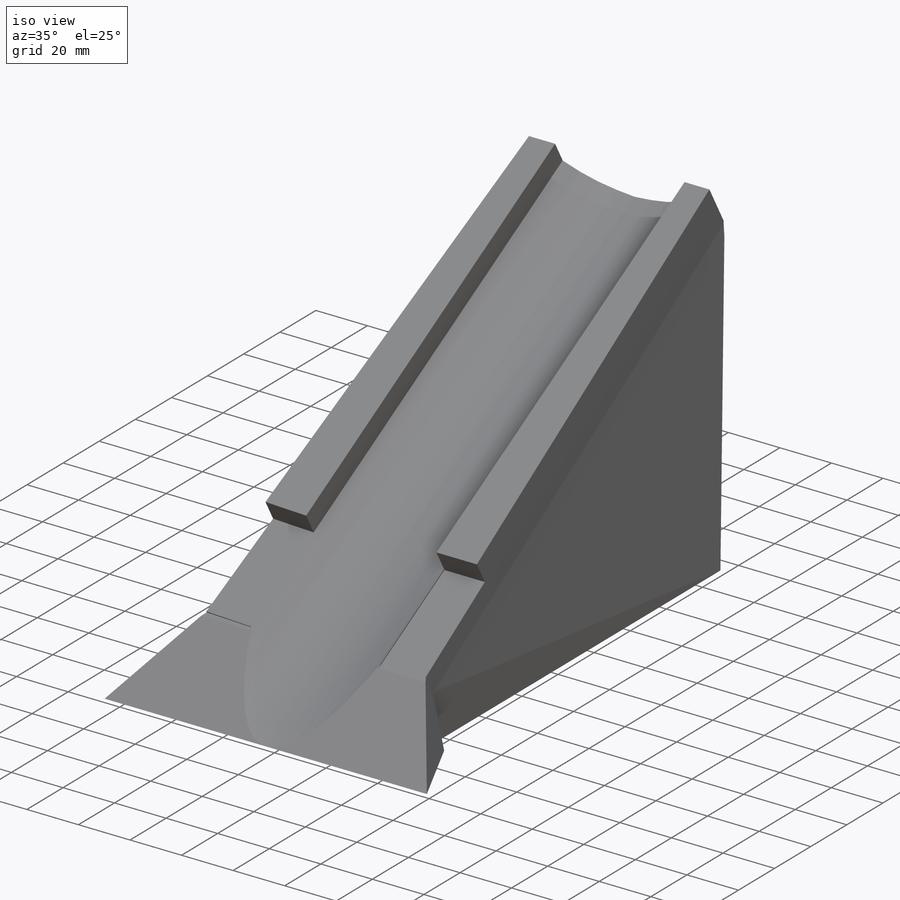
[diagram: iso view]
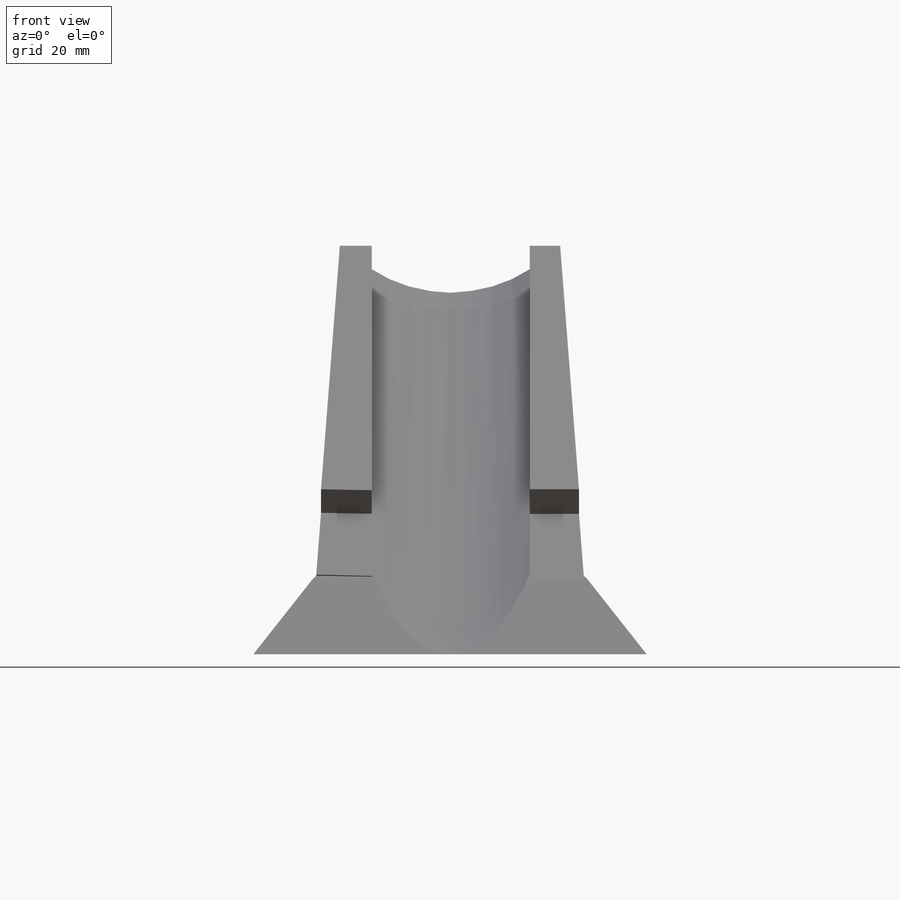
[diagram: front view]
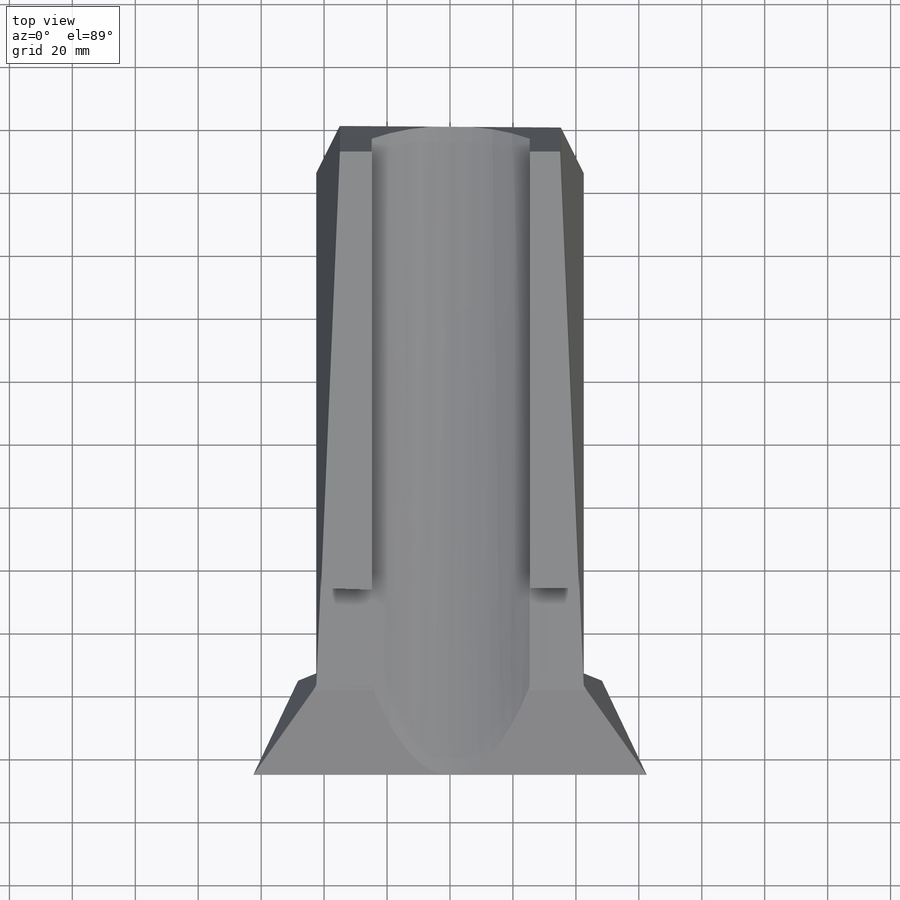
[diagram: top view]
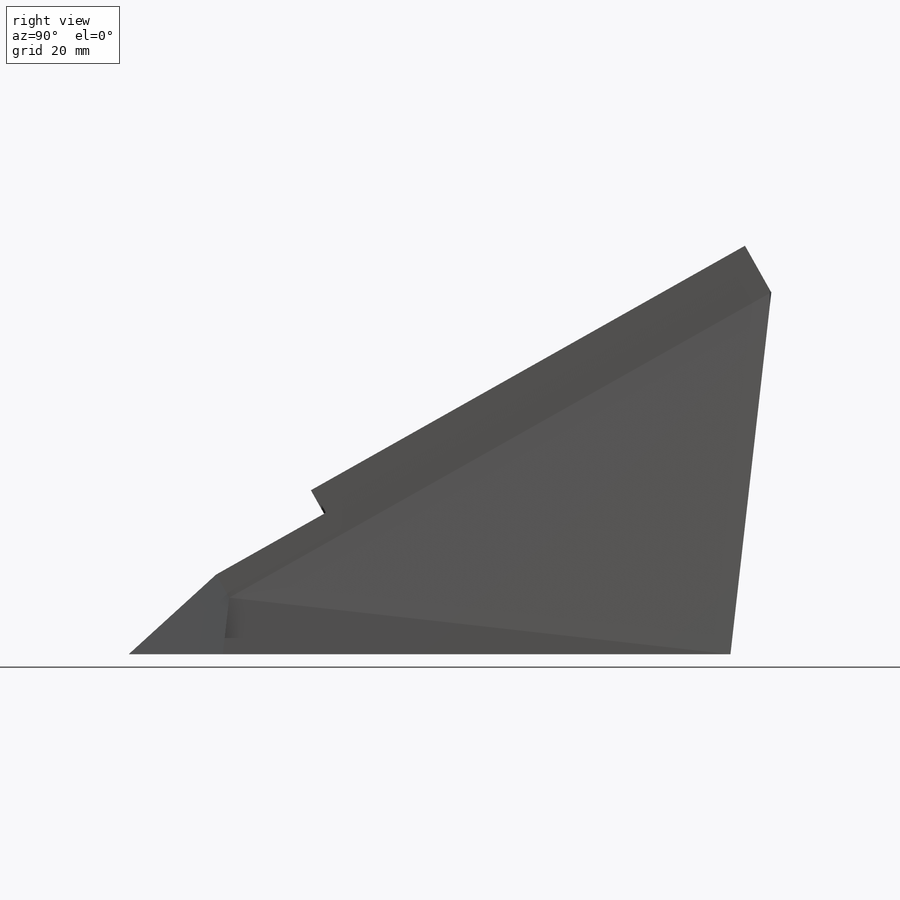
[diagram: right view]
SOLIDWORKS PART (.sldprt)
format: sldprt  version: not decoded by parser v0  size: 931,840 bytes
history: native  units: mm
features: sketch x44, cut_extrude x22, extrude x17, fillet x11, plane x6, shell x2, material x1 (+12 scaffold rows collapsed)
feature tree (115):
  scaffold x12  (default folders/planes/origin — collapsed)
  material  "Material <not specified>"
  sketch  "Sketch1"  dims[D1=85.0mm D2=0.0deg]
  plane  "Plane1"  Offset=115mm
  sketch  "Sketch2"  dims[c1.D1=70.0mm c1.D2=0.0deg c2.D1=0.5deg]
  shell  "Shell1"  Thickness=10mm
  sketch  "Sketch3"  dims[D1=70.0mm]
  sketch  "Sketch5"  dims[D1=0.0mm D2=8.0mm]
  extrude  "Boss-Extrude4"  Depth=12.78mm
  sketch  "Sketch6"  dims[c1.D1=60.0mm c2.D1=0.0mm c2.D2=60.0deg]
  plane  "Plane2"  Offset=215mm
  sketch  "Sketch7"  dims[c1.D1=~86.655209mm c2.D1=180.0deg c3.D1=40.0mm c3.D2=~40.090914mm c4.D2=180.0deg c5.D2=50.0mm]
  shell  "Loft-Thin3"  Thickness=8mm
  sketch  "Sketch8"  dims[D1=50.0mm D2=10.0mm D3=45.0mm D4=45.0mm]
  cut_extrude  "Cut-Extrude1"  Depth=10mm
  sketch  "Sketch9"  dims[D1=50.0mm D2=10.75mm]
  cut_extrude  "Cut-Extrude3"  Depth=10mm
  sketch  "Sketch11"  dims[c1.D2=25.0mm c1.D1=33.0mm c2.D2=32.0mm c2.D1=32.0mm]
  cut_extrude  "Cut-Extrude7"  Depth=10mm
  sketch  "Sketch12"  dims[D1=~7.990215mm]
  cut_extrude  "Cut-Extrude9"  Depth=1mm
  sketch  "Sketch13"
  cut_extrude  "Cut-Extrude10"  Depth=0.5mm
  sketch  "Sketch14"
  cut_extrude  "Cut-Extrude12"  Depth=1mm
  sketch  "Sketch15"
  extrude  "Boss-Extrude7"  Depth=11mm
  sketch  "Sketch17"  dims[c1.D1=115.0mm c1.D2=~85.337889mm c1.D3=38.0mm c1.D4=~37.730147mm c2.D3=33.0mm c2.D4=~37.730147mm]
  extrude  "Boss-Extrude8"  Depth=60mm
  sketch  "Sketch18"  dims[c1.D1=8.1mm c1.D2=8.1mm c2.D1=57.5mm c3.D1=~30.886157deg c3.D2=~36.183544mm c4.D2=30.89deg c4.D1=~63.231724mm c5.D1=28.0deg c5.D2=~32.426057mm c6.D2=28.0deg c6.D3=~34.897694mm c7.D3=35.0deg c8.D3=~31.591328mm c9.D3=~153.410634deg c10.D3=~31.591328mm]
  cut_extrude  "Cut-Extrude16"  [1 undecoded]
  fillet  "Fillet1"  Radius=5mm
  fillet  "Fillet3"  Radius=2mm
  fillet  "Fillet4"  Radius=2mm
  fillet  "Fillet5"  Radius=2mm
  fillet  "Fillet6"  Radius=2mm
  fillet  "Fillet7"  Radius=2mm
  fillet  "Fillet8"  Radius=2mm
  fillet  "Fillet9"  Radius=2mm
  fillet  "Fillet10"  Radius=2mm
  fillet  "Fillet11"  Radius=2mm
  fillet  "Fillet12"  Radius=2mm
  sketch  "Sketch20"  dims[D1=30.0mm D2=25.0mm]
  cut_extrude  "Cut-Extrude17"  [1 undecoded]
  sketch  "Sketch22"  dims[D1=60.0mm D2=12.0mm D3=30.0mm]
  extrude  "Boss-Extrude9"  Depth=30mm
  sketch  "Sketch23"  dims[D1=6.5mm]
  extrude  "Boss-Extrude10"  Depth=40mm
  sketch  "Sketch27"
  extrude  "Boss-Extrude12"  Depth=190mm
  sketch  "Sketch30"
  extrude  "Boss-Extrude15"  Depth=30mm
  plane  "Plane9"
  sketch  "Sketch32"
  cut_extrude  "Cut-Extrude19"  [1 undecoded]
  sketch  "Sketch35"  dims[D1=115.0mm D2=12.96mm]
  cut_extrude  "Cut-Extrude21"  [1 undecoded]
  plane  "Plane10"
  sketch  "Sketch39"
  plane  "Plane12"
  sketch  "Sketch51"
  extrude  "Boss-Extrude20"  Depth=20mm
  sketch  "Sketch52"
  extrude  "Boss-Extrude21"  Depth=20mm
  sketch  "Sketch53"
  cut_extrude  "Cut-Extrude27"  [1 undecoded]
  sketch  "Sketch54"
  cut_extrude  "Cut-Extrude28"  [1 undecoded]
  sketch  "Sketch56"
  cut_extrude  "Cut-Extrude31"  Depth=22mm
  sketch  "Sketch57"
  cut_extrude  "Cut-Extrude32"  Depth=22mm
  plane  "Plane13"
  sketch  "Sketch58"
  extrude  "Boss-Extrude24"  Depth=234.33mm
  sketch  "Sketch59"
  extrude  "Boss-Extrude25"  Depth=234.33mm
  sketch  "Sketch60"
  extrude  "Boss-Extrude26"  Depth=12mm
  sketch  "Sketch61"
  extrude  "Boss-Extrude27"  Depth=12mm
  sketch  "Sketch62"
  cut_extrude  "Cut-Extrude34"  [1 undecoded]
  sketch  "Sketch64"
  extrude  "Boss-Extrude28"  Depth=8mm
  sketch  "Sketch65"
  extrude  "Boss-Extrude29"  Depth=8mm
  sketch  "Sketch67"
  cut_extrude  "Cut-Extrude37"  [1 undecoded]
  sketch  "Sketch68"
  cut_extrude  "Cut-Extrude38"  Depth=40mm
  sketch  "Sketch69"
  cut_extrude  "Cut-Extrude39"  Depth=40mm
  sketch  "Sketch70"
  extrude  "Boss-Extrude30"  Depth=5mm
  sketch  "Sketch71"
  extrude  "Boss-Extrude31"  Depth=5mm
  cut_extrude  "Cut-Extrude41"  [1 undecoded]
  sketch  "Sketch73"
  cut_extrude  "Cut-Extrude42"  Depth=16.64mm
  sketch  "Sketch74"
  cut_extrude  "Cut-Extrude43"  Depth=23.64mm
  sketch  "Sketch75"
  cut_extrude  "Cut-Extrude44"  Depth=60.16mm
decode coverage: 59 of 96 modeling features carry decoded parameters
note: ~ marks probable driven/reference dimensions
note: 9 parameter values undecoded
summary: no parameter record found for 9 features
note: suppression state not decoded; provenance and decode notes live in map.json
